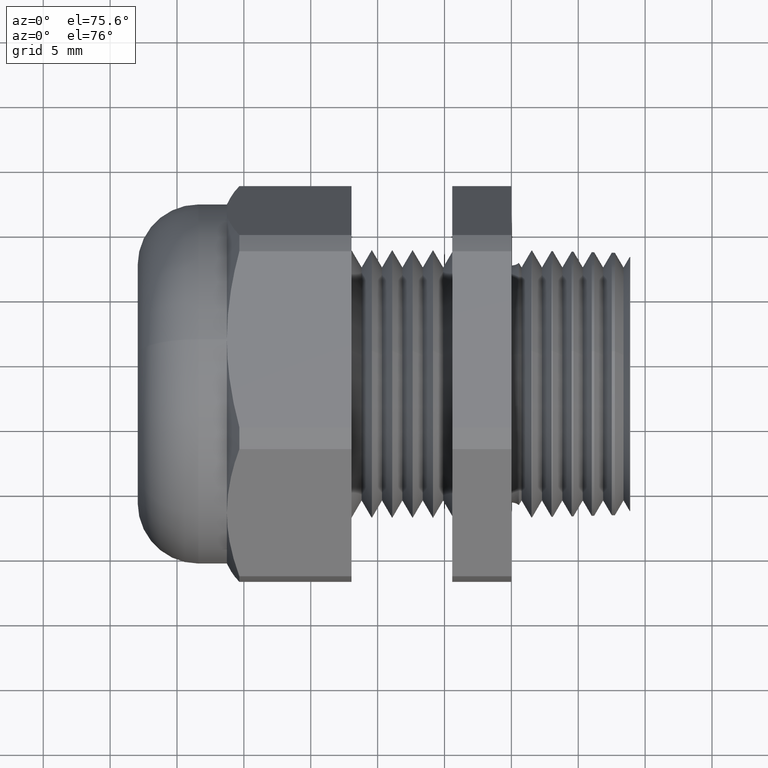
[diagram: clean part render]
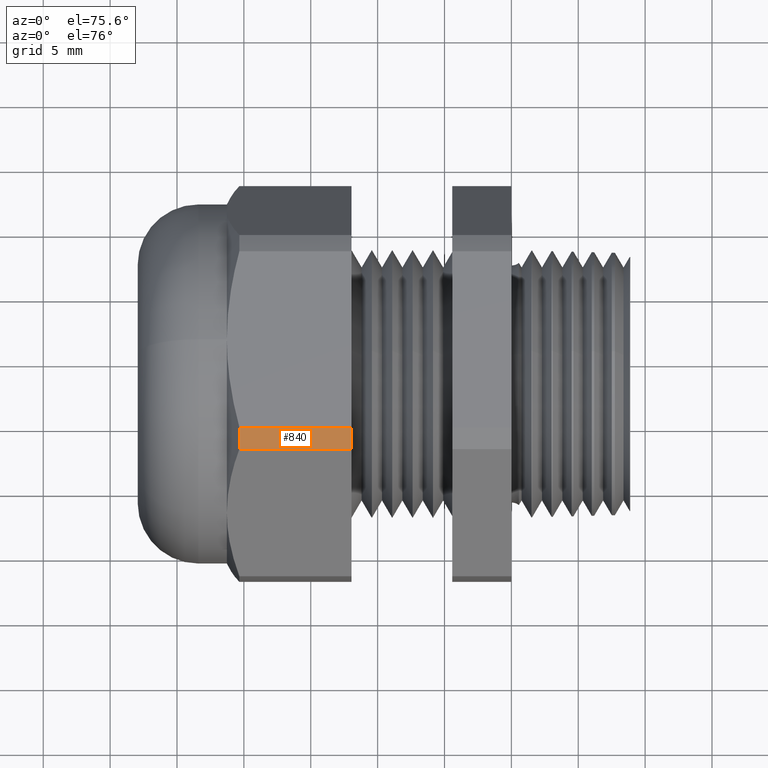
[diagram: same view with one face highlighted and labeled with its STEP entity id]
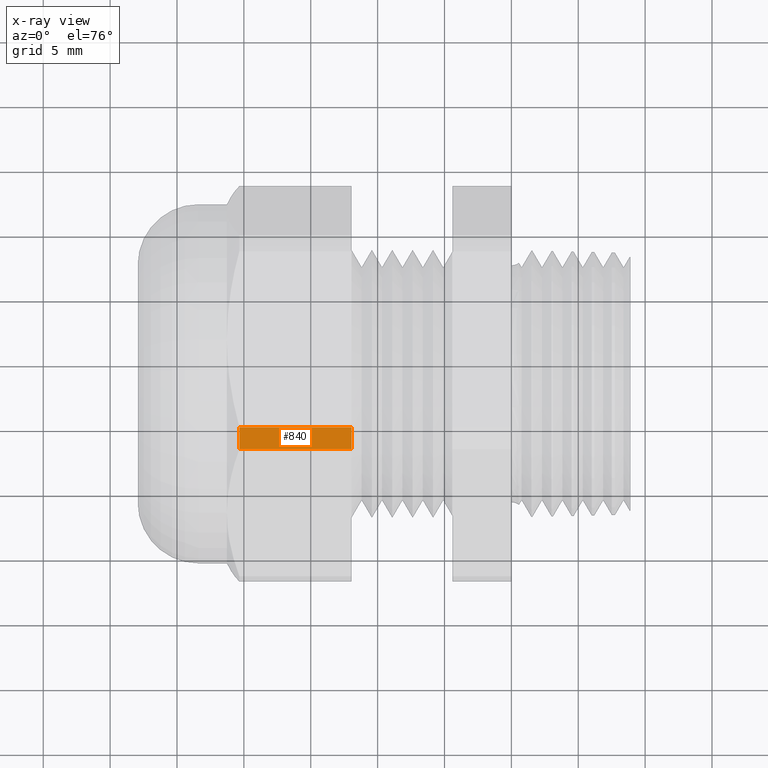
[diagram: x-ray of the same camera — body ghosted, the highlighted face saturated]
A machine part, auxiliary view. The second image highlights one B-rep face of the part: STEP entity #840.
The next image is the same camera in x-ray: the body ghosted, the highlighted face saturated — about 0% of this face is hidden behind the body in this view.
In plain terms, the highlighted cylindrical surface (partial cylindrical patch) has radius 15.0774 mm, axis along (-1, 0, 0).
Its self-contained STEP definition (entity closure, byte-faithful):
#824 = ORIENTED_EDGE ( 'NONE', *, *, #825, .F. ) ;
#825 = EDGE_CURVE ( 'NONE', #845, #851, #2313, .T. ) ;
#840 = ADVANCED_FACE ( 'NONE', ( #2336 ), #2335, .T. ) ;
#841 = EDGE_LOOP ( 'NONE', ( #842, #846, #849, #824 ) ) ;
#842 = ORIENTED_EDGE ( 'NONE', *, *, #843, .F. ) ;
#843 = EDGE_CURVE ( 'NONE', #844, #845, #2334, .T. ) ;
#844 = VERTEX_POINT ( 'NONE', #2325 ) ;
#845 = VERTEX_POINT ( 'NONE', #2324 ) ;
#846 = ORIENTED_EDGE ( 'NONE', *, *, #847, .T. ) ;
#847 = EDGE_CURVE ( 'NONE', #844, #848, #2323, .T. ) ;
#848 = VERTEX_POINT ( 'NONE', #2319 ) ;
#849 = ORIENTED_EDGE ( 'NONE', *, *, #850, .T. ) ;
#850 = EDGE_CURVE ( 'NONE', #848, #851, #2386, .T. ) ;
#851 = VERTEX_POINT ( 'NONE', #2381 ) ;
#2310 = DIRECTION ( 'NONE',  ( 1.000000000000000000, 0.0000000000000000000, 0.0000000000000000000 ) ) ;
#2311 = VECTOR ( 'NONE', #2310, 39.37007874015748100 ) ;
#2312 = CARTESIAN_POINT ( 'NONE',  ( -2.533243884661831900, -0.2673218285138724300, 0.5299999999999999200 ) ) ;
#2313 = LINE ( 'NONE', #2312, #2311 ) ;
#2319 = CARTESIAN_POINT ( 'NONE',  ( -0.4708333333333330500, -0.3253325497488157000, 0.4965074944791210700 ) ) ;
#2320 = DIRECTION ( 'NONE',  ( 1.000000000000000000, 0.0000000000000000000, 0.0000000000000000000 ) ) ;
#2321 = VECTOR ( 'NONE', #2320, 39.37007874015748100 ) ;
#2322 = CARTESIAN_POINT ( 'NONE',  ( -2.533243884661831900, -0.3253325497488157000, 0.4965074944791210700 ) ) ;
#2323 = LINE ( 'NONE', #2322, #2321 ) ;
#2324 = CARTESIAN_POINT ( 'NONE',  ( -0.8007805228795397100, -0.2673218285138724300, 0.5299999999999999200 ) ) ;
#2325 = CARTESIAN_POINT ( 'NONE',  ( -0.8007805228795397100, -0.3253325497488157600, 0.4965074944791210700 ) ) ;
#2326 = DIRECTION ( 'NONE',  ( 0.0000000000000000000, 0.0000000000000000000, -1.000000000000000000 ) ) ;
#2327 = DIRECTION ( 'NONE',  ( -1.000000000000000000, 0.0000000000000000000, 0.0000000000000000000 ) ) ;
#2328 = CARTESIAN_POINT ( 'NONE',  ( -0.8007805228795397100, 0.0000000000000000000, 0.0000000000000000000 ) ) ;
#2329 = AXIS2_PLACEMENT_3D ( 'NONE', #2328, #2327, #2326 ) ;
#2330 = DIRECTION ( 'NONE',  ( 0.0000000000000000000, 0.0000000000000000000, 1.000000000000000000 ) ) ;
#2331 = DIRECTION ( 'NONE',  ( -1.000000000000000000, 0.0000000000000000000, 0.0000000000000000000 ) ) ;
#2332 = CARTESIAN_POINT ( 'NONE',  ( -0.7238591030180623300, 0.0000000000000000000, 0.0000000000000000000 ) ) ;
#2333 = AXIS2_PLACEMENT_3D ( 'NONE', #2332, #2331, #2330 ) ;
#2334 = CIRCLE ( 'NONE', #2329, 0.5936000000000001300 ) ;
#2335 = CYLINDRICAL_SURFACE ( 'NONE', #2333, 0.5936000000000001300 ) ;
#2336 = FACE_OUTER_BOUND ( 'NONE', #841, .T. ) ;
#2381 = CARTESIAN_POINT ( 'NONE',  ( -0.4708333333333330500, -0.2673218285138724300, 0.5299999999999999200 ) ) ;
#2382 = DIRECTION ( 'NONE',  ( 0.0000000000000000000, 0.0000000000000000000, 1.000000000000000000 ) ) ;
#2383 = DIRECTION ( 'NONE',  ( -1.000000000000000000, 0.0000000000000000000, 0.0000000000000000000 ) ) ;
#2384 = CARTESIAN_POINT ( 'NONE',  ( -0.4708333333333332700, 0.0000000000000000000, 0.0000000000000000000 ) ) ;
#2385 = AXIS2_PLACEMENT_3D ( 'NONE', #2384, #2383, #2382 ) ;
#2386 = CIRCLE ( 'NONE', #2385, 0.5936000000000002400 ) ;